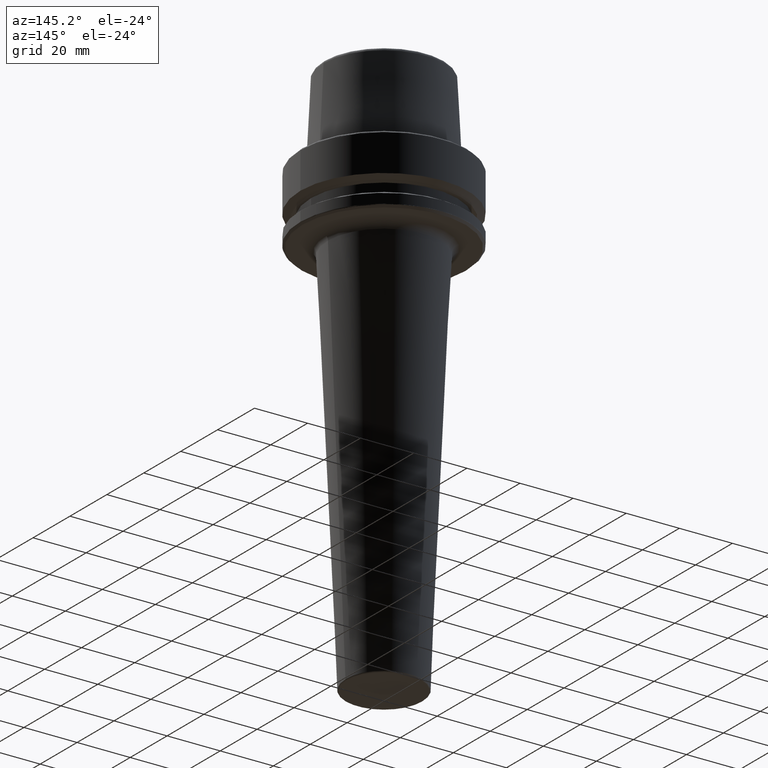
[diagram: clean part render]
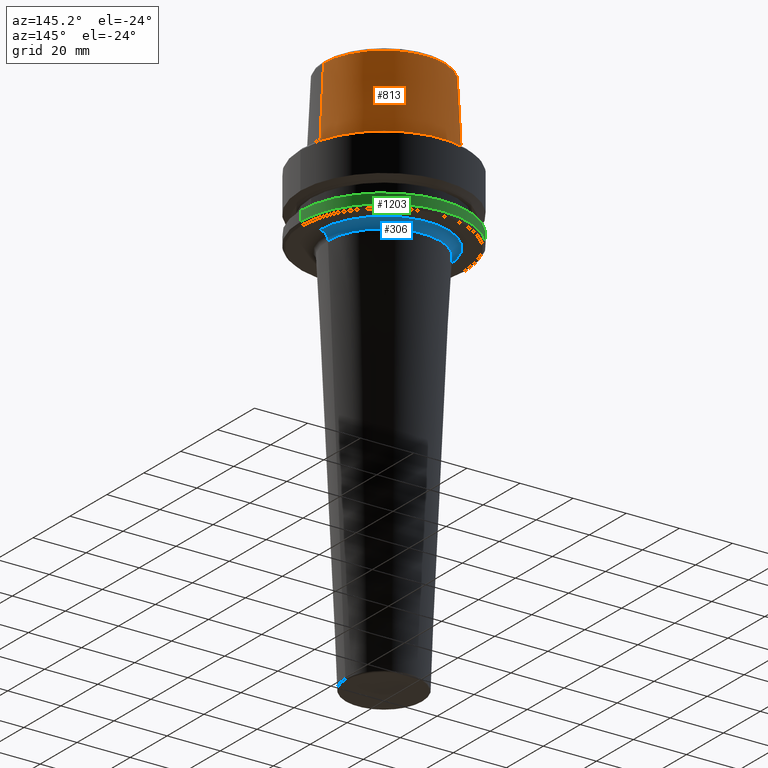
[diagram: same view with three faces highlighted in distinct colors, each labeled with its STEP entity id]
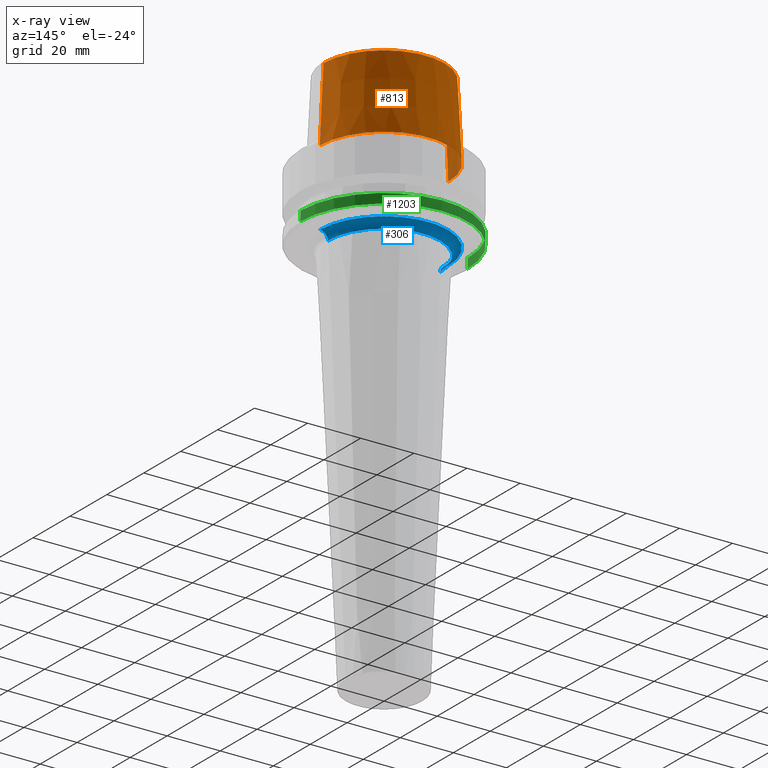
[diagram: x-ray of the same camera — body ghosted, the three highlighted faces saturated]
A machine part, auxiliary view with three faces highlighted in distinct colors.
The next image is the same camera in x-ray (body ghosted, the three faces saturated) — at least one of them is partly hidden behind the body in this view.
Their STEP definitions:

[orange] entity #813 — the highlighted conical surface has half-angle 2.868 deg.
#81 = AXIS2_PLACEMENT_3D ( 'NONE', #158, #840, #251 ) ;
#140 = VERTEX_POINT ( 'NONE', #460 ) ;
#158 = CARTESIAN_POINT ( 'NONE',  ( 0.0000000000000000000, 0.0000000000000000000, 30.76004333261571900 ) ) ;
#220 = LINE ( 'NONE', #1165, #466 ) ;
#237 = FACE_OUTER_BOUND ( 'NONE', #947, .T. ) ;
#238 = VERTEX_POINT ( 'NONE', #1079 ) ;
#251 = DIRECTION ( 'NONE',  ( 1.000000000000000000, 0.0000000000000000000, 0.0000000000000000000 ) ) ;
#387 = DIRECTION ( 'NONE',  ( 0.05003611051310804400, 6.127656258166099700E-018, -0.9987474093306675200 ) ) ;
#396 = CARTESIAN_POINT ( 'NONE',  ( -24.19537568275369200, 2.963078938405201500E-015, 2.500000000000002200 ) ) ;
#400 = EDGE_CURVE ( 'NONE', #461, #818, #1139, .T. ) ;
#402 = ORIENTED_EDGE ( 'NONE', *, *, #799, .T. ) ;
#404 = CARTESIAN_POINT ( 'NONE',  ( -24.19537568275369200, 0.0000000000000000000, 2.500000000000002200 ) ) ;
#448 = AXIS2_PLACEMENT_3D ( 'NONE', #964, #1078, #978 ) ;
#449 = EDGE_CURVE ( 'NONE', #238, #818, #474, .T. ) ;
#460 = CARTESIAN_POINT ( 'NONE',  ( 22.77957961851797100, 2.876386432489616700E-015, 30.76004333261571900 ) ) ;
#461 = VERTEX_POINT ( 'NONE', #1219 ) ;
#466 = VECTOR ( 'NONE', #387, 1000.000000000000200 ) ;
#474 = CIRCLE ( 'NONE', #1217, 24.19537568275369200 ) ;
#523 = CIRCLE ( 'NONE', #81, 22.77957961851797100 ) ;
#621 = CARTESIAN_POINT ( 'NONE',  ( 0.0000000000000000000, 0.0000000000000000000, 2.500000000000002200 ) ) ;
#724 = DIRECTION ( 'NONE',  ( -0.05003611051310804400, 0.0000000000000000000, -0.9987474093306675200 ) ) ;
#799 = EDGE_CURVE ( 'NONE', #140, #238, #220, .T. ) ;
#813 = ADVANCED_FACE ( 'NONE', ( #237 ), #946, .T. ) ;
#818 = VERTEX_POINT ( 'NONE', #396 ) ;
#840 = DIRECTION ( 'NONE',  ( -0.0000000000000000000, -0.0000000000000000000, 1.000000000000000000 ) ) ;
#864 = ORIENTED_EDGE ( 'NONE', *, *, #1185, .F. ) ;
#946 = CONICAL_SURFACE ( 'NONE', #448, 24.19537568275369200, 0.05005701257455997400 ) ;
#947 = EDGE_LOOP ( 'NONE', ( #864, #402, #980, #1125 ) ) ;
#964 = CARTESIAN_POINT ( 'NONE',  ( 0.0000000000000000000, 0.0000000000000000000, 2.500000000000002200 ) ) ;
#973 = VECTOR ( 'NONE', #724, 1000.000000000000200 ) ;
#978 = DIRECTION ( 'NONE',  ( -1.000000000000000000, 0.0000000000000000000, 0.0000000000000000000 ) ) ;
#980 = ORIENTED_EDGE ( 'NONE', *, *, #449, .T. ) ;
#1015 = DIRECTION ( 'NONE',  ( 1.000000000000000000, 0.0000000000000000000, 0.0000000000000000000 ) ) ;
#1078 = DIRECTION ( 'NONE',  ( 0.0000000000000000000, 0.0000000000000000000, -1.000000000000000000 ) ) ;
#1079 = CARTESIAN_POINT ( 'NONE',  ( 24.19537568275369200, 0.0000000000000000000, 2.500000000000002200 ) ) ;
#1125 = ORIENTED_EDGE ( 'NONE', *, *, #400, .F. ) ;
#1139 = LINE ( 'NONE', #404, #973 ) ;
#1165 = CARTESIAN_POINT ( 'NONE',  ( 24.19537568275369200, 2.963078938405201500E-015, 2.500000000000002200 ) ) ;
#1185 = EDGE_CURVE ( 'NONE', #140, #461, #523, .T. ) ;
#1195 = DIRECTION ( 'NONE',  ( -0.0000000000000000000, -0.0000000000000000000, 1.000000000000000000 ) ) ;
#1217 = AXIS2_PLACEMENT_3D ( 'NONE', #621, #1195, #1015 ) ;
#1219 = CARTESIAN_POINT ( 'NONE',  ( -22.77957961851797100, 0.0000000000000000000, 30.76004333261571900 ) ) ;

[blue] entity #306 — the highlighted toroidal blend (fillet) surface has major radius 24.118 mm and minor (blend) radius 3 mm.
#5 = ORIENTED_EDGE ( 'NONE', *, *, #636, .F. ) ;
#46 = EDGE_CURVE ( 'NONE', #167, #1053, #622, .T. ) ;
#88 = DIRECTION ( 'NONE',  ( 1.224646799147353200E-016, 1.000000000000000000, 0.0000000000000000000 ) ) ;
#90 = ORIENTED_EDGE ( 'NONE', *, *, #46, .F. ) ;
#167 = VERTEX_POINT ( 'NONE', #585 ) ;
#171 = CARTESIAN_POINT ( 'NONE',  ( -24.11803596382061300, 2.953607554481366500E-015, -29.00000000000000700 ) ) ;
#224 = AXIS2_PLACEMENT_3D ( 'NONE', #816, #1199, #913 ) ;
#256 = CARTESIAN_POINT ( 'NONE',  ( 21.12106885838849700, 0.0000000000000000000, -28.86513648025556500 ) ) ;
#301 = AXIS2_PLACEMENT_3D ( 'NONE', #171, #88, #1042 ) ;
#306 = ADVANCED_FACE ( 'NONE', ( #502 ), #774, .F. ) ;
#342 = DIRECTION ( 'NONE',  ( 0.0000000000000000000, 0.0000000000000000000, -1.000000000000000000 ) ) ;
#351 = AXIS2_PLACEMENT_3D ( 'NONE', #1237, #454, #598 ) ;
#381 = AXIS2_PLACEMENT_3D ( 'NONE', #457, #1236, #342 ) ;
#411 = DIRECTION ( 'NONE',  ( -0.0000000000000000000, -0.0000000000000000000, -1.000000000000000000 ) ) ;
#454 = DIRECTION ( 'NONE',  ( -0.0000000000000000000, -0.0000000000000000000, 1.000000000000000000 ) ) ;
#457 = CARTESIAN_POINT ( 'NONE',  ( 24.11803596382061300, 0.0000000000000000000, -29.00000000000000700 ) ) ;
#502 = FACE_OUTER_BOUND ( 'NONE', #927, .T. ) ;
#581 = ORIENTED_EDGE ( 'NONE', *, *, #860, .T. ) ;
#585 = CARTESIAN_POINT ( 'NONE',  ( -24.11803596382061300, 2.953607554481366500E-015, -26.00000000000001100 ) ) ;
#598 = DIRECTION ( 'NONE',  ( 1.000000000000000000, 0.0000000000000000000, 0.0000000000000000000 ) ) ;
#622 = CIRCLE ( 'NONE', #301, 2.999999999999999100 ) ;
#633 = CARTESIAN_POINT ( 'NONE',  ( 0.0000000000000000000, 0.0000000000000000000, -28.86513648025556500 ) ) ;
#636 = EDGE_CURVE ( 'NONE', #1053, #1197, #819, .T. ) ;
#699 = EDGE_CURVE ( 'NONE', #1119, #167, #1190, .T. ) ;
#774 = TOROIDAL_SURFACE ( 'NONE', #351, 24.11803596382061300, 3.000000000000000000 ) ;
#794 = ORIENTED_EDGE ( 'NONE', *, *, #699, .F. ) ;
#812 = AXIS2_PLACEMENT_3D ( 'NONE', #633, #411, #1001 ) ;
#816 = CARTESIAN_POINT ( 'NONE',  ( 0.0000000000000000000, 0.0000000000000000000, -26.00000000000001100 ) ) ;
#819 = CIRCLE ( 'NONE', #812, 21.12106885838849700 ) ;
#860 = EDGE_CURVE ( 'NONE', #1119, #1197, #1233, .T. ) ;
#913 = DIRECTION ( 'NONE',  ( 1.000000000000000000, 0.0000000000000000000, 0.0000000000000000000 ) ) ;
#927 = EDGE_LOOP ( 'NONE', ( #90, #794, #581, #5 ) ) ;
#967 = CARTESIAN_POINT ( 'NONE',  ( 24.11803596382061300, 0.0000000000000000000, -26.00000000000001100 ) ) ;
#1001 = DIRECTION ( 'NONE',  ( 1.000000000000000000, 0.0000000000000000000, 0.0000000000000000000 ) ) ;
#1042 = DIRECTION ( 'NONE',  ( -1.000000000000000000, 1.224646799147353500E-016, 0.0000000000000000000 ) ) ;
#1053 = VERTEX_POINT ( 'NONE', #1073 ) ;
#1073 = CARTESIAN_POINT ( 'NONE',  ( -21.12106885838849700, 2.586584937199631200E-015, -28.86513648025556500 ) ) ;
#1119 = VERTEX_POINT ( 'NONE', #967 ) ;
#1190 = CIRCLE ( 'NONE', #224, 24.11803596382061300 ) ;
#1197 = VERTEX_POINT ( 'NONE', #256 ) ;
#1199 = DIRECTION ( 'NONE',  ( -0.0000000000000000000, -0.0000000000000000000, 1.000000000000000000 ) ) ;
#1233 = CIRCLE ( 'NONE', #381, 2.999999999999999100 ) ;
#1236 = DIRECTION ( 'NONE',  ( 0.0000000000000000000, -1.000000000000000000, 0.0000000000000000000 ) ) ;
#1237 = CARTESIAN_POINT ( 'NONE',  ( 0.0000000000000000000, 0.0000000000000000000, -29.00000000000000700 ) ) ;

[green] entity #1203 — the highlighted cylindrical surface (partial cylindrical patch) has radius 31.5 mm, axis along (-0, -0, 1).
#8 = AXIS2_PLACEMENT_3D ( 'NONE', #162, #940, #1226 ) ;
#69 = DIRECTION ( 'NONE',  ( -0.0000000000000000000, -0.0000000000000000000, 1.000000000000000000 ) ) ;
#87 = ORIENTED_EDGE ( 'NONE', *, *, #1240, .F. ) ;
#137 = CYLINDRICAL_SURFACE ( 'NONE', #8, 31.50000000000000000 ) ;
#139 = AXIS2_PLACEMENT_3D ( 'NONE', #555, #1238, #665 ) ;
#162 = CARTESIAN_POINT ( 'NONE',  ( 0.0000000000000000000, 0.0000000000000000000, 78.96908074195309300 ) ) ;
#168 = VERTEX_POINT ( 'NONE', #486 ) ;
#209 = EDGE_CURVE ( 'NONE', #168, #312, #962, .T. ) ;
#222 = VECTOR ( 'NONE', #69, 1000.000000000000000 ) ;
#243 = EDGE_CURVE ( 'NONE', #887, #1164, #993, .T. ) ;
#249 = EDGE_CURVE ( 'NONE', #887, #168, #1014, .T. ) ;
#312 = VERTEX_POINT ( 'NONE', #806 ) ;
#362 = ORIENTED_EDGE ( 'NONE', *, *, #249, .T. ) ;
#446 = DIRECTION ( 'NONE',  ( -0.0000000000000000000, -0.0000000000000000000, 1.000000000000000000 ) ) ;
#468 = FACE_OUTER_BOUND ( 'NONE', #961, .T. ) ;
#486 = CARTESIAN_POINT ( 'NONE',  ( -31.50000000000000000, 3.857637417314161900E-015, -25.03431457505077200 ) ) ;
#509 = AXIS2_PLACEMENT_3D ( 'NONE', #787, #569, #696 ) ;
#545 = CARTESIAN_POINT ( 'NONE',  ( 31.50000000000000000, 0.0000000000000000000, -25.03431457505077200 ) ) ;
#555 = CARTESIAN_POINT ( 'NONE',  ( 0.0000000000000000000, 0.0000000000000000000, -21.37749907475931700 ) ) ;
#569 = DIRECTION ( 'NONE',  ( -0.0000000000000000000, -0.0000000000000000000, 1.000000000000000000 ) ) ;
#610 = ORIENTED_EDGE ( 'NONE', *, *, #209, .T. ) ;
#665 = DIRECTION ( 'NONE',  ( 1.000000000000000000, 0.0000000000000000000, 0.0000000000000000000 ) ) ;
#696 = DIRECTION ( 'NONE',  ( 1.000000000000000000, 0.0000000000000000000, 0.0000000000000000000 ) ) ;
#713 = CIRCLE ( 'NONE', #139, 31.50000000000000000 ) ;
#787 = CARTESIAN_POINT ( 'NONE',  ( 0.0000000000000000000, 0.0000000000000000000, -25.03431457505077200 ) ) ;
#806 = CARTESIAN_POINT ( 'NONE',  ( -31.50000000000000000, 3.857637417314162700E-015, -21.37749907475931700 ) ) ;
#887 = VERTEX_POINT ( 'NONE', #545 ) ;
#906 = CARTESIAN_POINT ( 'NONE',  ( 31.50000000000000000, 0.0000000000000000000, -21.37749907475931700 ) ) ;
#940 = DIRECTION ( 'NONE',  ( -0.0000000000000000000, -0.0000000000000000000, 1.000000000000000000 ) ) ;
#944 = CARTESIAN_POINT ( 'NONE',  ( 31.50000000000000000, 0.0000000000000000000, 78.96908074195309300 ) ) ;
#961 = EDGE_LOOP ( 'NONE', ( #362, #610, #87, #990 ) ) ;
#962 = LINE ( 'NONE', #1076, #1032 ) ;
#990 = ORIENTED_EDGE ( 'NONE', *, *, #243, .F. ) ;
#993 = LINE ( 'NONE', #944, #222 ) ;
#1014 = CIRCLE ( 'NONE', #509, 31.50000000000000000 ) ;
#1032 = VECTOR ( 'NONE', #446, 1000.000000000000000 ) ;
#1076 = CARTESIAN_POINT ( 'NONE',  ( -31.50000000000000000, 3.857637417314162700E-015, 78.96908074195309300 ) ) ;
#1164 = VERTEX_POINT ( 'NONE', #906 ) ;
#1203 = ADVANCED_FACE ( 'NONE', ( #468 ), #137, .T. ) ;
#1226 = DIRECTION ( 'NONE',  ( 1.000000000000000000, 0.0000000000000000000, 0.0000000000000000000 ) ) ;
#1238 = DIRECTION ( 'NONE',  ( -0.0000000000000000000, -0.0000000000000000000, 1.000000000000000000 ) ) ;
#1240 = EDGE_CURVE ( 'NONE', #1164, #312, #713, .T. ) ;